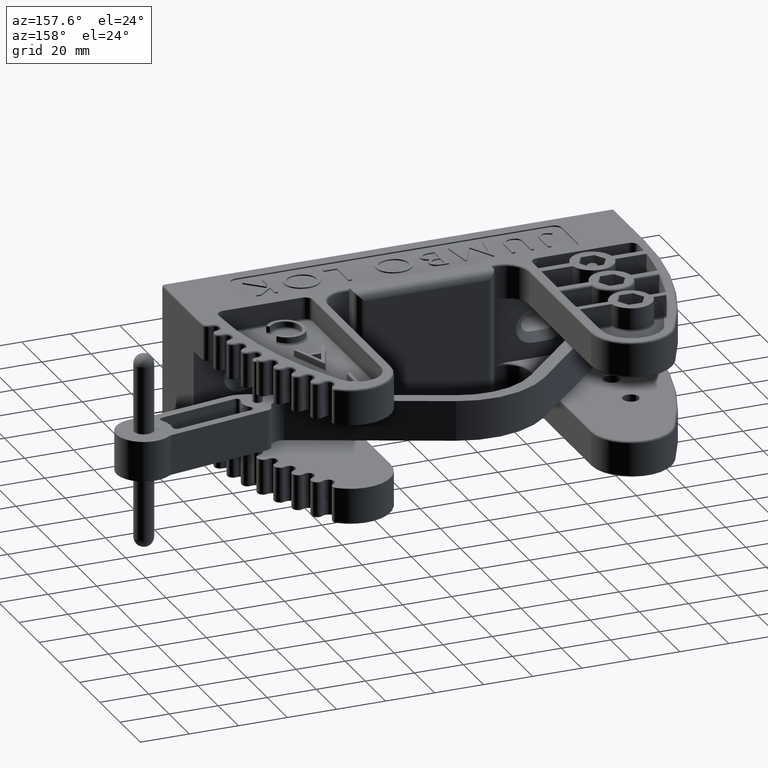
[diagram: clean part render]
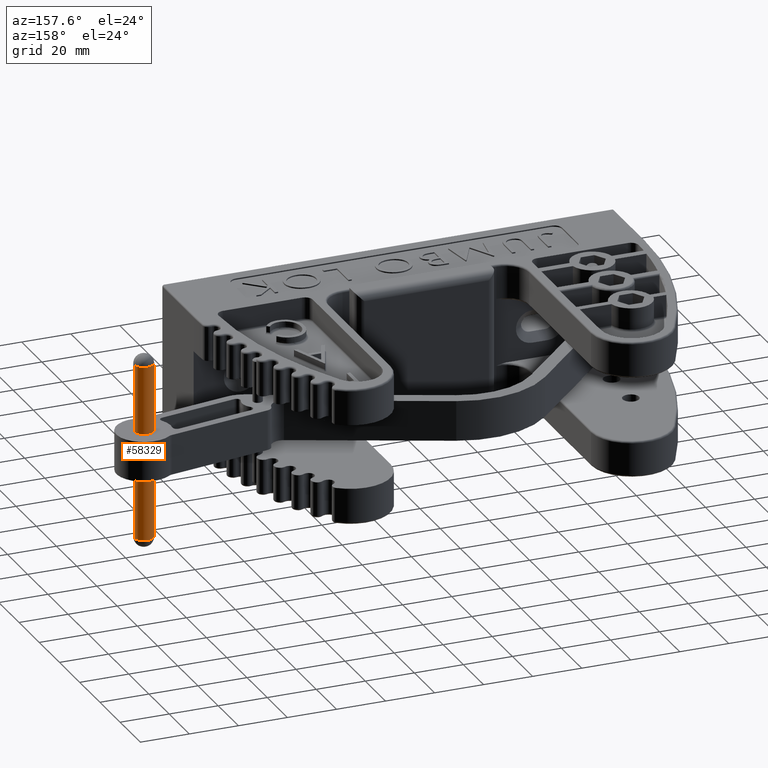
[diagram: same view with one face highlighted and labeled with its STEP entity id]
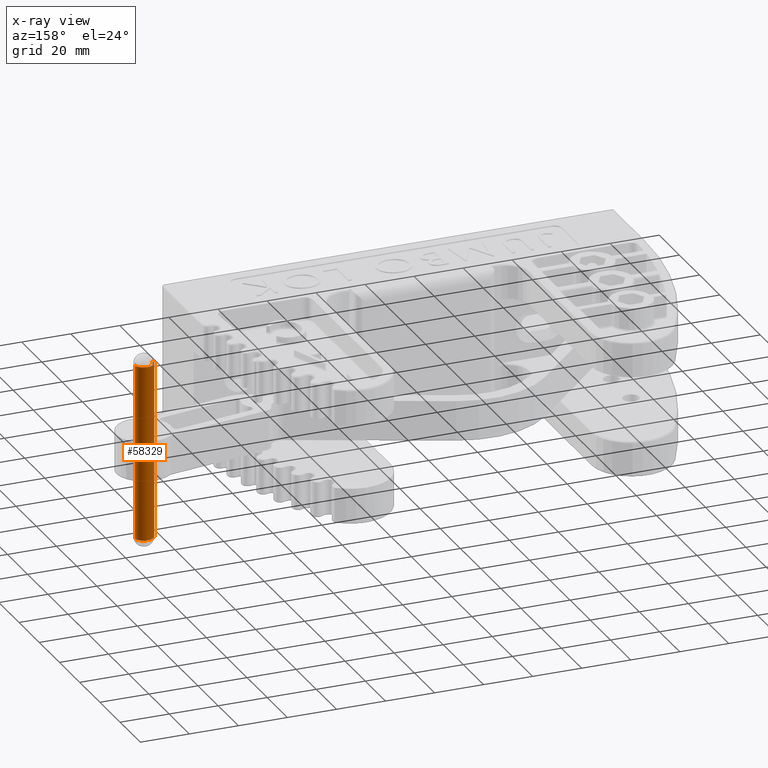
[diagram: x-ray of the same camera — body ghosted, the highlighted face saturated]
A machine part, auxiliary view. The second image highlights one B-rep face of the part: STEP entity #58329.
The next image is the same camera in x-ray: the body ghosted, the highlighted face saturated — about 0% of this face is hidden behind the body in this view.
In plain terms, the highlighted cylindrical surface (edge-blend (fillet) strip) has radius 3.9688 mm, axis along (0, 0, -1).
Its self-contained STEP definition (entity closure, byte-faithful):
#89 = ORIENTED_EDGE ( 'NONE', *, *, #58869, .T. ) ;
#90 = ORIENTED_EDGE ( 'NONE', *, *, #58874, .T. ) ;
#91 = ORIENTED_EDGE ( 'NONE', *, *, #58870, .T. ) ;
#92 = ORIENTED_EDGE ( 'NONE', *, *, #58878, .F. ) ;
#4656 = LINE ( 'NONE', #8768, #4662 ) ;
#4659 = CIRCLE ( 'NONE', #52332, 0.1562500000000019200 ) ;
#4660 = VECTOR ( 'NONE', #8759, 39.37007874015748100 ) ;
#4661 = CIRCLE ( 'NONE', #52328, 0.1562500000000019200 ) ;
#4662 = VECTOR ( 'NONE', #8769, 39.37007874015748100 ) ;
#4665 = LINE ( 'NONE', #8752, #4660 ) ;
#8738 = CARTESIAN_POINT ( 'NONE',  ( 8.000000000000000000, 0.1875000000000003900, 1.406250000000000000 ) ) ;
#8744 = DIRECTION ( 'NONE',  ( 0.0000000000000000000, 0.0000000000000000000, -1.000000000000000000 ) ) ;
#8745 = DIRECTION ( 'NONE',  ( -1.000000000000000000, 0.0000000000000000000, 0.0000000000000000000 ) ) ;
#8746 = CARTESIAN_POINT ( 'NONE',  ( 8.000000000000000000, 0.1875000000000003900, -1.406249999999999800 ) ) ;
#8748 = DIRECTION ( 'NONE',  ( -0.0000000000000000000, -0.0000000000000000000, 1.000000000000000000 ) ) ;
#8749 = DIRECTION ( 'NONE',  ( -1.000000000000000000, 0.0000000000000000000, 0.0000000000000000000 ) ) ;
#8752 = CARTESIAN_POINT ( 'NONE',  ( 8.156250000000001800, 0.1875000000000004200, 1.562500000000000000 ) ) ;
#8759 = DIRECTION ( 'NONE',  ( 0.0000000000000000000, 0.0000000000000000000, -1.000000000000000000 ) ) ;
#8768 = CARTESIAN_POINT ( 'NONE',  ( 7.843749999999998200, 0.1875000000000003900, 1.562500000000000000 ) ) ;
#8769 = DIRECTION ( 'NONE',  ( 0.0000000000000000000, 0.0000000000000000000, -1.000000000000000000 ) ) ;
#23081 = VERTEX_POINT ( 'NONE', #33306 ) ;
#23082 = VERTEX_POINT ( 'NONE', #33307 ) ;
#23085 = VERTEX_POINT ( 'NONE', #33310 ) ;
#23086 = VERTEX_POINT ( 'NONE', #33311 ) ;
#33306 = CARTESIAN_POINT ( 'NONE',  ( 7.843749999999998200, 0.1875000000000003900, 1.406250000000000000 ) ) ;
#33307 = CARTESIAN_POINT ( 'NONE',  ( 8.156250000000001800, 0.1875000000000004200, 1.406250000000000000 ) ) ;
#33310 = CARTESIAN_POINT ( 'NONE',  ( 8.156250000000001800, 0.1875000000000004200, -1.406249999999999800 ) ) ;
#33311 = CARTESIAN_POINT ( 'NONE',  ( 7.843749999999998200, 0.1875000000000003900, -1.406249999999999800 ) ) ;
#37113 = AXIS2_PLACEMENT_3D ( 'NONE', #50431, #50419, #50427 ) ;
#40103 = EDGE_LOOP ( 'NONE', ( #89, #90, #91, #92 ) ) ;
#43517 = FACE_OUTER_BOUND ( 'NONE', #40103, .T. ) ;
#43519 = CYLINDRICAL_SURFACE ( 'NONE', #37113, 0.1562500000000019200 ) ;
#50419 = DIRECTION ( 'NONE',  ( 0.0000000000000000000, 0.0000000000000000000, -1.000000000000000000 ) ) ;
#50427 = DIRECTION ( 'NONE',  ( -1.000000000000000000, 0.0000000000000000000, 0.0000000000000000000 ) ) ;
#50431 = CARTESIAN_POINT ( 'NONE',  ( 8.000000000000000000, 0.1875000000000003900, 1.562500000000000000 ) ) ;
#52328 = AXIS2_PLACEMENT_3D ( 'NONE', #8746, #8748, #8749 ) ;
#52332 = AXIS2_PLACEMENT_3D ( 'NONE', #8738, #8744, #8745 ) ;
#58329 = ADVANCED_FACE ( 'NONE', ( #43517 ), #43519, .T. ) ;
#58869 = EDGE_CURVE ( 'NONE', #23081, #23082, #4659, .T. ) ;
#58870 = EDGE_CURVE ( 'NONE', #23085, #23086, #4661, .T. ) ;
#58874 = EDGE_CURVE ( 'NONE', #23082, #23085, #4665, .T. ) ;
#58878 = EDGE_CURVE ( 'NONE', #23081, #23086, #4656, .T. ) ;